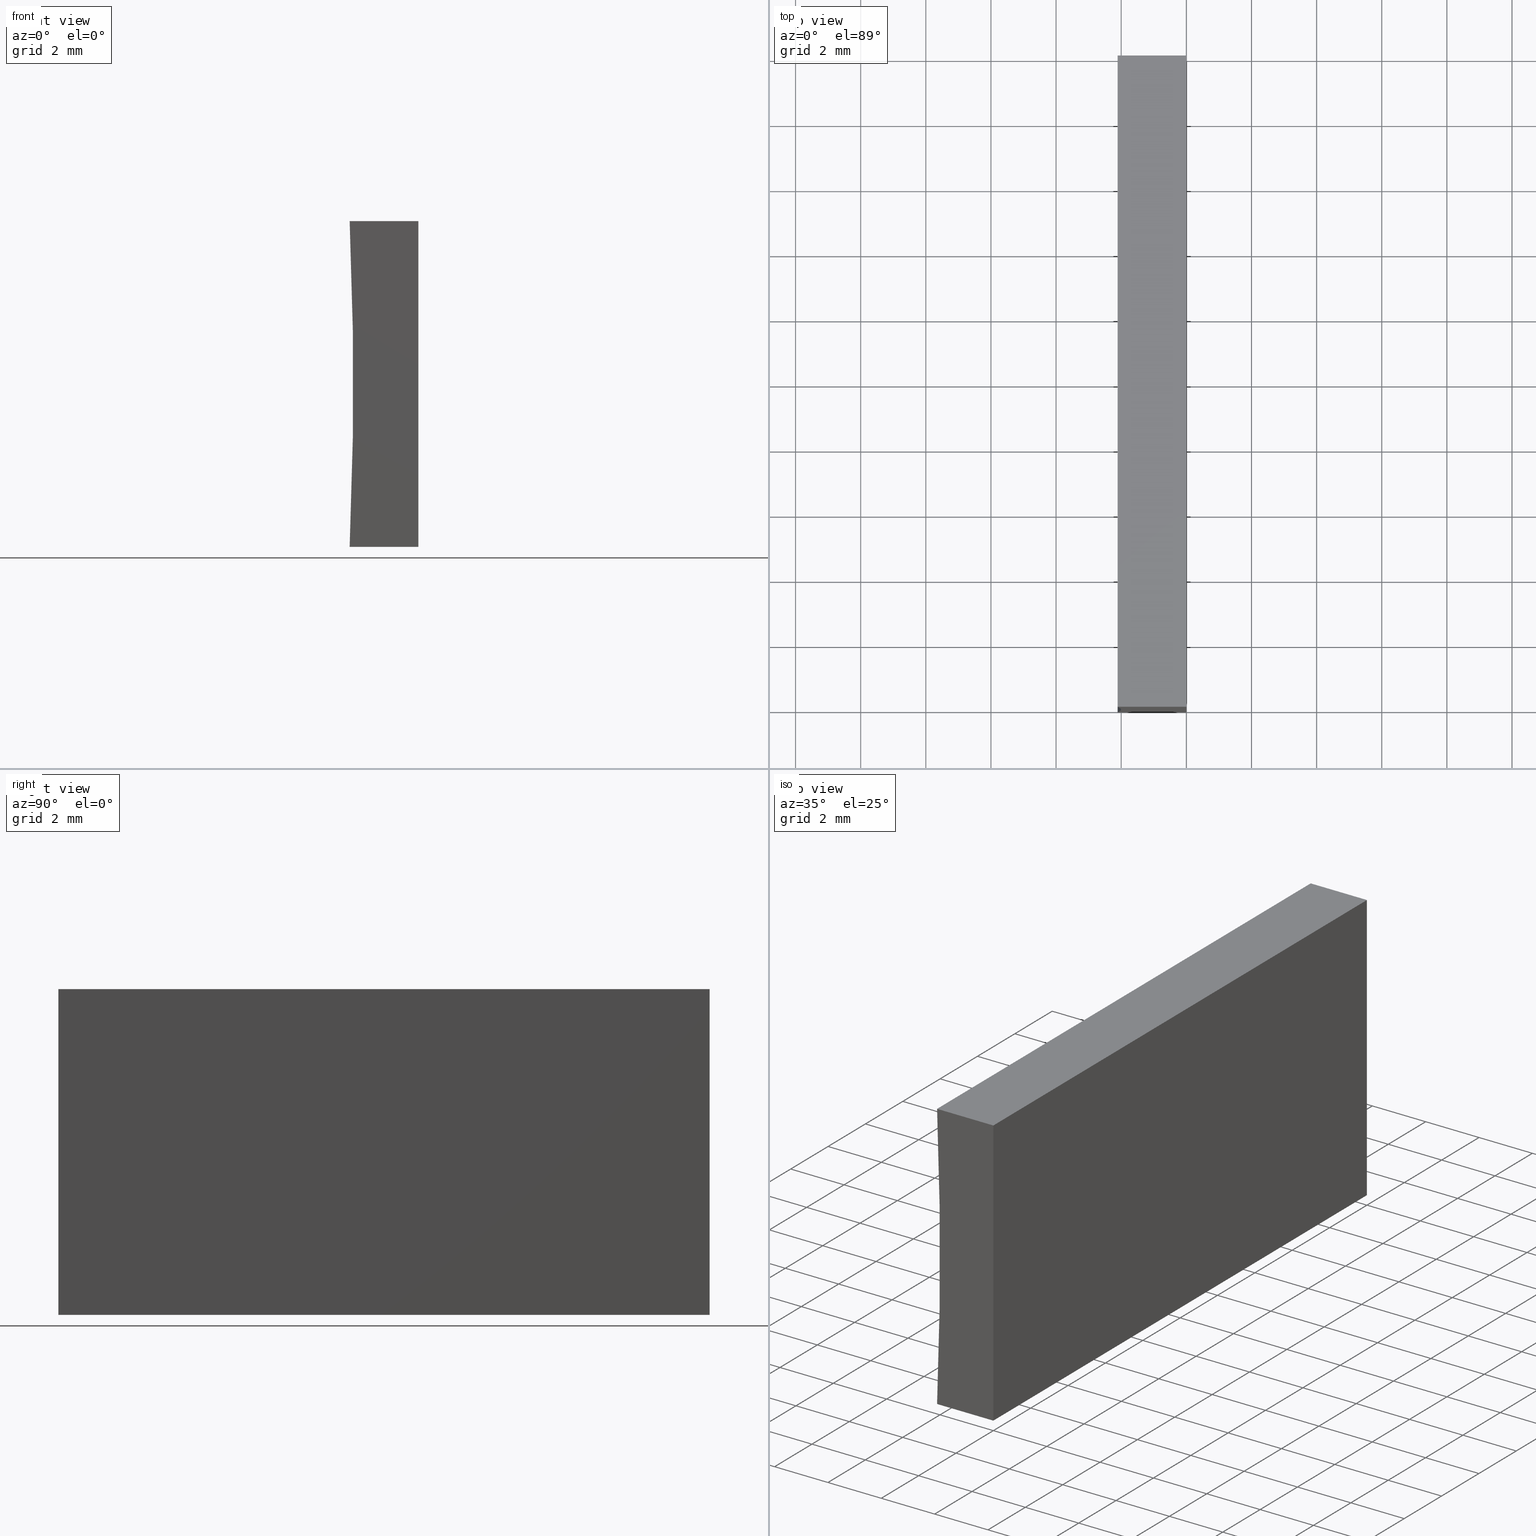
[diagram: canonical four-view strip — front | top / right | iso, engineering-drawing reading convention]
A machine part, canonical four-view strip (front | top / right | iso — engineering-drawing reading convention). The complete STEP part file that produces these views, byte-faithful:
ISO-10303-21;
HEADER;
FILE_DESCRIPTION (( 'STEP AP214' ),
    '1' );
FILE_NAME ('155484.STEP',
    '2019-07-04T01:57:53',
    ( 'user' ),
    ( '΢���й�' ),
    'SwSTEP 2.0',
    'SolidWorks 2016',
    '' );
FILE_SCHEMA (( 'AUTOMOTIVE_DESIGN' ));
ENDSEC;

DATA;
#1 = EDGE_CURVE ( 'NONE', #86, #123, #80, .T. ) ;
#2 = VECTOR ( 'NONE', #59, 1000.000000000000000 ) ;
#3 = VERTEX_POINT ( 'NONE', #82 ) ;
#4 = ORIENTED_EDGE ( 'NONE', *, *, #6, .T. ) ;
#5 = EDGE_LOOP ( 'NONE', ( #12, #155, #17, #183 ) ) ;
#6 = EDGE_CURVE ( 'NONE', #122, #187, #107, .T. ) ;
#7 = SURFACE_STYLE_USAGE ( .BOTH. , #29 ) ;
#8 = ADVANCED_FACE ( 'NONE', ( #153 ), #126, .F. ) ;
#9 = ORIENTED_EDGE ( 'NONE', *, *, #1, .T. ) ;
#10 = COLOUR_RGB ( '',1.000000000000000000, 1.000000000000000000, 1.000000000000000000 ) ;
#11 = DIRECTION ( 'NONE',  ( -0.0000000000000000000, -1.000000000000000000, -0.0000000000000000000 ) ) ;
#12 = ORIENTED_EDGE ( 'NONE', *, *, #33, .T. ) ;
#13 = VERTEX_POINT ( 'NONE', #160 ) ;
#14 = ORIENTED_EDGE ( 'NONE', *, *, #120, .F. ) ;
#15 = DIRECTION ( 'NONE',  ( -8.224915575553603800E-016, 0.0000000000000000000, -1.000000000000000000 ) ) ;
#16 = PRESENTATION_LAYER_ASSIGNMENT (  '', '', ( #141 ) ) ;
#17 = ORIENTED_EDGE ( 'NONE', *, *, #42, .F. ) ;
#18 = DIRECTION ( 'NONE',  ( -1.000000000000000000, 0.0000000000000000000, -8.224915575553600800E-016 ) ) ;
#19 = FACE_OUTER_BOUND ( 'NONE', #20, .T. ) ;
#20 = EDGE_LOOP ( 'NONE', ( #93, #119, #184, #201 ) ) ;
#21 = EDGE_CURVE ( 'NONE', #62, #86, #25, .T. ) ;
#22 = PRODUCT_DEFINITION ( 'δ֪', '', #85, #31 ) ;
#23 = SURFACE_STYLE_USAGE ( .BOTH. , #71 ) ;
#24 = CARTESIAN_POINT ( 'NONE',  ( -116.6200000000000000, 20.00000000000000000, 5.000000000000013300 ) ) ;
#25 = CIRCLE ( 'NONE', #137, 114.6200000000000000 ) ;
#26 = COLOUR_RGB ( '',1.000000000000000000, 1.000000000000000000, 1.000000000000000000 ) ;
#27 = VECTOR ( 'NONE', #190, 1000.000000000000000 ) ;
#28 = VECTOR ( 'NONE', #175, 1000.000000000000000 ) ;
#29 = SURFACE_SIDE_STYLE ('',( #146 ) ) ;
#30 = PLANE ( 'NONE',  #46 ) ;
#31 = PRODUCT_DEFINITION_CONTEXT ( 'detailed design', #195, 'design' ) ;
#32 = CARTESIAN_POINT ( 'NONE',  ( 0.0000000000000000000, 20.00000000000000000, 0.0000000000000000000 ) ) ;
#33 = EDGE_CURVE ( 'NONE', #3, #122, #136, .T. ) ;
#34 = CARTESIAN_POINT ( 'NONE',  ( -116.6200000000000000, 0.0000000000000000000, 5.000000000000013300 ) ) ;
#35 = CARTESIAN_POINT ( 'NONE',  ( 6.123233995736766300E-016, 20.00000000000000000, 10.00000000000000000 ) ) ;
#36 = FILL_AREA_STYLE_COLOUR ( '', #26 ) ;
#37 = DIRECTION ( 'NONE',  ( -1.000000000000000000, 0.0000000000000000000, 6.123233995736766000E-017 ) ) ;
#38 = CARTESIAN_POINT ( 'NONE',  ( 0.0000000000000000000, 0.0000000000000000000, 0.0000000000000000000 ) ) ;
#39 = FACE_OUTER_BOUND ( 'NONE', #182, .T. ) ;
#40 =( NAMED_UNIT ( * ) SI_UNIT ( $, .STERADIAN. ) SOLID_ANGLE_UNIT ( ) );
#41 = EDGE_CURVE ( 'NONE', #13, #3, #64, .T. ) ;
#42 = EDGE_CURVE ( 'NONE', #13, #142, #108, .T. ) ;
#43 =( NAMED_UNIT ( * ) PLANE_ANGLE_UNIT ( ) SI_UNIT ( $, .RADIAN. ) );
#44 = EDGE_CURVE ( 'NONE', #187, #123, #192, .T. ) ;
#45 = FACE_OUTER_BOUND ( 'NONE', #5, .T. ) ;
#46 = AXIS2_PLACEMENT_3D ( 'NONE', #150, #55, #169 ) ;
#47 = DIRECTION ( 'NONE',  ( 0.0000000000000000000, 0.0000000000000000000, 1.000000000000000000 ) ) ;
#48 = ORIENTED_EDGE ( 'NONE', *, *, #120, .T. ) ;
#49 = ORIENTED_EDGE ( 'NONE', *, *, #33, .F. ) ;
#50 = LINE ( 'NONE', #140, #188 ) ;
#51 = CARTESIAN_POINT ( 'NONE',  ( -2.109107941645996100, 20.00000000000000000, -1.387778780781445700E-014 ) ) ;
#52 = AXIS2_PLACEMENT_3D ( 'NONE', #180, #37, #101 ) ;
#53 = DIRECTION ( 'NONE',  ( -0.0000000000000000000, -1.000000000000000000, -0.0000000000000000000 ) ) ;
#54 = AXIS2_PLACEMENT_3D ( 'NONE', #94, #74, #79 ) ;
#55 = DIRECTION ( 'NONE',  ( 0.0000000000000000000, 1.000000000000000000, 0.0000000000000000000 ) ) ;
#56 =( GEOMETRIC_REPRESENTATION_CONTEXT ( 3 ) GLOBAL_UNCERTAINTY_ASSIGNED_CONTEXT ( ( #95 ) ) GLOBAL_UNIT_ASSIGNED_CONTEXT ( ( #87, #154, #40 ) ) REPRESENTATION_CONTEXT ( 'NONE', 'WORKASPACE' ) );
#57 = ORIENTED_EDGE ( 'NONE', *, *, #6, .F. ) ;
#58 = CYLINDRICAL_SURFACE ( 'NONE', #54, 114.6200000000000000 ) ;
#59 = DIRECTION ( 'NONE',  ( 1.000000000000000000, -0.0000000000000000000, -8.224915575553605800E-016 ) ) ;
#60 = CARTESIAN_POINT ( 'NONE',  ( -2.109107941646009900, 20.00000000000000000, 10.00000000000000200 ) ) ;
#61 = EDGE_CURVE ( 'NONE', #86, #13, #50, .T. ) ;
#62 = VERTEX_POINT ( 'NONE', #51 ) ;
#63 = CLOSED_SHELL ( 'NONE', ( #202, #76, #8, #157, #91, #138 ) ) ;
#64 = LINE ( 'NONE', #65, #151 ) ;
#65 = CARTESIAN_POINT ( 'NONE',  ( 6.123233995736766300E-016, 20.00000000000000000, 10.00000000000000000 ) ) ;
#66 = CARTESIAN_POINT ( 'NONE',  ( -116.6200000000000000, 20.00000000000000000, 5.000000000000013300 ) ) ;
#67 = VECTOR ( 'NONE', #18, 1000.000000000000000 ) ;
#68 = ORIENTED_EDGE ( 'NONE', *, *, #69, .T. ) ;
#69 = EDGE_CURVE ( 'NONE', #142, #122, #145, .T. ) ;
#70 = CARTESIAN_POINT ( 'NONE',  ( 0.0000000000000000000, 20.00000000000000000, 0.0000000000000000000 ) ) ;
#71 = SURFACE_SIDE_STYLE ('',( #179 ) ) ;
#72 = CARTESIAN_POINT ( 'NONE',  ( 0.0000000000000000000, 20.00000000000000000, 0.0000000000000000000 ) ) ;
#73 = MECHANICAL_DESIGN_GEOMETRIC_PRESENTATION_REPRESENTATION (  '', ( #141 ), #56 ) ;
#74 = DIRECTION ( 'NONE',  ( -0.0000000000000000000, -1.000000000000000000, -0.0000000000000000000 ) ) ;
#75 = ORIENTED_EDGE ( 'NONE', *, *, #42, .T. ) ;
#76 = ADVANCED_FACE ( 'NONE', ( #19 ), #58, .F. ) ;
#77 = SHAPE_DEFINITION_REPRESENTATION ( #121, #159 ) ;
#78 =( GEOMETRIC_REPRESENTATION_CONTEXT ( 3 ) GLOBAL_UNCERTAINTY_ASSIGNED_CONTEXT ( ( #131 ) ) GLOBAL_UNIT_ASSIGNED_CONTEXT ( ( #158, #43, #143 ) ) REPRESENTATION_CONTEXT ( 'NONE', 'WORKASPACE' ) );
#79 = DIRECTION ( 'NONE',  ( 0.0000000000000000000, 0.0000000000000000000, -1.000000000000000000 ) ) ;
#80 = LINE ( 'NONE', #125, #173 ) ;
#81 = LINE ( 'NONE', #70, #67 ) ;
#82 = CARTESIAN_POINT ( 'NONE',  ( 6.123233995736766300E-016, 0.0000000000000000000, 10.00000000000000000 ) ) ;
#83 = PLANE ( 'NONE',  #99 ) ;
#84 = APPLICATION_PROTOCOL_DEFINITION ( 'draft international standard', 'automotive_design', 1998, #195 ) ;
#85 = PRODUCT_DEFINITION_FORMATION_WITH_SPECIFIED_SOURCE ( '�κ�', '', #198, .NOT_KNOWN. ) ;
#86 = VERTEX_POINT ( 'NONE', #60 ) ;
#87 =( LENGTH_UNIT ( ) NAMED_UNIT ( * ) SI_UNIT ( .MILLI., .METRE. ) );
#88 = CARTESIAN_POINT ( 'NONE',  ( 0.0000000000000000000, 20.00000000000000000, 0.0000000000000000000 ) ) ;
#89 = MANIFOLD_SOLID_BREP ( '͹̨-����1', #63 ) ;
#90 = ORIENTED_EDGE ( 'NONE', *, *, #177, .F. ) ;
#91 = ADVANCED_FACE ( 'NONE', ( #139 ), #172, .T. ) ;
#92 = DIRECTION ( 'NONE',  ( 0.0000000000000000000, 0.0000000000000000000, 1.000000000000000000 ) ) ;
#93 = ORIENTED_EDGE ( 'NONE', *, *, #44, .T. ) ;
#94 = CARTESIAN_POINT ( 'NONE',  ( -116.6200000000000000, 20.00000000000000000, 5.000000000000013300 ) ) ;
#95 = UNCERTAINTY_MEASURE_WITH_UNIT (LENGTH_MEASURE( 1.000000000000000100E-005 ), #87, 'distance_accuracy_value', 'NONE');
#96 = ORIENTED_EDGE ( 'NONE', *, *, #61, .T. ) ;
#97 = LINE ( 'NONE', #171, #102 ) ;
#98 = MECHANICAL_DESIGN_GEOMETRIC_PRESENTATION_REPRESENTATION (  '', ( #193 ), #78 ) ;
#99 = AXIS2_PLACEMENT_3D ( 'NONE', #72, #133, #166 ) ;
#100 = CARTESIAN_POINT ( 'NONE',  ( -2.109107941645996100, 0.0000000000000000000, -1.387778780781445700E-014 ) ) ;
#101 = DIRECTION ( 'NONE',  ( 6.123233995736766000E-017, 0.0000000000000000000, 1.000000000000000000 ) ) ;
#102 = VECTOR ( 'NONE', #118, 1000.000000000000000 ) ;
#103 = ORIENTED_EDGE ( 'NONE', *, *, #44, .F. ) ;
#104 = ORIENTED_EDGE ( 'NONE', *, *, #41, .F. ) ;
#105 = CARTESIAN_POINT ( 'NONE',  ( -2.109107941646009900, 0.0000000000000000000, 10.00000000000000200 ) ) ;
#106 = DIRECTION ( 'NONE',  ( 0.0000000000000000000, 1.000000000000000000, 0.0000000000000000000 ) ) ;
#107 = LINE ( 'NONE', #194, #189 ) ;
#108 = LINE ( 'NONE', #109, #27 ) ;
#109 = CARTESIAN_POINT ( 'NONE',  ( 0.0000000000000000000, 20.00000000000000000, 0.0000000000000000000 ) ) ;
#110 = DIRECTION ( 'NONE',  ( 0.0000000000000000000, 0.0000000000000000000, 1.000000000000000000 ) ) ;
#111 = EDGE_CURVE ( 'NONE', #62, #187, #97, .T. ) ;
#112 = DIRECTION ( 'NONE',  ( -1.000000000000000000, 0.0000000000000000000, 8.224915575553603800E-016 ) ) ;
#113 = UNCERTAINTY_MEASURE_WITH_UNIT (LENGTH_MEASURE( 1.000000000000000100E-005 ), #147, 'distance_accuracy_value', 'NONE');
#114 = FILL_AREA_STYLE ('',( #132 ) ) ;
#115 = ORIENTED_EDGE ( 'NONE', *, *, #111, .F. ) ;
#116 = AXIS2_PLACEMENT_3D ( 'NONE', #35, #15, #112 ) ;
#117 = PLANE ( 'NONE',  #52 ) ;
#118 = DIRECTION ( 'NONE',  ( -0.0000000000000000000, -1.000000000000000000, -0.0000000000000000000 ) ) ;
#119 = ORIENTED_EDGE ( 'NONE', *, *, #1, .F. ) ;
#120 = EDGE_CURVE ( 'NONE', #123, #3, #144, .T. ) ;
#121 = PRODUCT_DEFINITION_SHAPE ( 'NONE', 'NONE',  #22 ) ;
#122 = VERTEX_POINT ( 'NONE', #38 ) ;
#123 = VERTEX_POINT ( 'NONE', #105 ) ;
#124 = DIRECTION ( 'NONE',  ( -0.0000000000000000000, -1.000000000000000000, -0.0000000000000000000 ) ) ;
#125 = CARTESIAN_POINT ( 'NONE',  ( -2.109107941646009900, 20.00000000000000000, 10.00000000000000200 ) ) ;
#126 = PLANE ( 'NONE',  #116 ) ;
#127 = VECTOR ( 'NONE', #200, 1000.000000000000000 ) ;
#128 =( NAMED_UNIT ( * ) SI_UNIT ( $, .STERADIAN. ) SOLID_ANGLE_UNIT ( ) );
#129 = AXIS2_PLACEMENT_3D ( 'NONE', #34, #11, #110 ) ;
#130 = FILL_AREA_STYLE ('',( #36 ) ) ;
#131 = UNCERTAINTY_MEASURE_WITH_UNIT (LENGTH_MEASURE( 1.000000000000000100E-005 ), #158, 'distance_accuracy_value', 'NONE');
#132 = FILL_AREA_STYLE_COLOUR ( '', #10 ) ;
#133 = DIRECTION ( 'NONE',  ( -8.224915575553600800E-016, 0.0000000000000000000, 1.000000000000000000 ) ) ;
#134 = EDGE_LOOP ( 'NONE', ( #197, #178, #96, #75 ) ) ;
#135 = PRESENTATION_STYLE_ASSIGNMENT (( #23 ) ) ;
#136 = LINE ( 'NONE', #176, #28 ) ;
#137 = AXIS2_PLACEMENT_3D ( 'NONE', #66, #161, #47 ) ;
#138 = ADVANCED_FACE ( 'NONE', ( #39 ), #30, .F. ) ;
#139 = FACE_OUTER_BOUND ( 'NONE', #134, .T. ) ;
#140 = CARTESIAN_POINT ( 'NONE',  ( 6.123233995736766300E-016, 20.00000000000000000, 10.00000000000000000 ) ) ;
#141 = STYLED_ITEM ( 'NONE', ( #135 ), #89 ) ;
#142 = VERTEX_POINT ( 'NONE', #88 ) ;
#143 =( NAMED_UNIT ( * ) SI_UNIT ( $, .STERADIAN. ) SOLID_ANGLE_UNIT ( ) );
#144 = LINE ( 'NONE', #186, #2 ) ;
#145 = LINE ( 'NONE', #32, #127 ) ;
#146 = SURFACE_STYLE_FILL_AREA ( #130 ) ;
#147 =( LENGTH_UNIT ( ) NAMED_UNIT ( * ) SI_UNIT ( .MILLI., .METRE. ) );
#148 = PRODUCT_CONTEXT ( 'NONE', #149, 'mechanical' ) ;
#149 = APPLICATION_CONTEXT ( 'automotive_design' ) ;
#150 = CARTESIAN_POINT ( 'NONE',  ( -116.6200000000000000, 0.0000000000000000000, 5.000000000000013300 ) ) ;
#151 = VECTOR ( 'NONE', #124, 1000.000000000000000 ) ;
#152 = ORIENTED_EDGE ( 'NONE', *, *, #61, .F. ) ;
#153 = FACE_OUTER_BOUND ( 'NONE', #167, .T. ) ;
#154 =( NAMED_UNIT ( * ) PLANE_ANGLE_UNIT ( ) SI_UNIT ( $, .RADIAN. ) );
#155 = ORIENTED_EDGE ( 'NONE', *, *, #69, .F. ) ;
#156 = AXIS2_PLACEMENT_3D ( 'NONE', #170, #92, #162 ) ;
#157 = ADVANCED_FACE ( 'NONE', ( #45 ), #117, .F. ) ;
#158 =( LENGTH_UNIT ( ) NAMED_UNIT ( * ) SI_UNIT ( .MILLI., .METRE. ) );
#159 = ADVANCED_BREP_SHAPE_REPRESENTATION ( '155484', ( #89, #156 ), #203 ) ;
#160 = CARTESIAN_POINT ( 'NONE',  ( 6.123233995736766300E-016, 20.00000000000000000, 10.00000000000000000 ) ) ;
#161 = DIRECTION ( 'NONE',  ( -0.0000000000000000000, -1.000000000000000000, -0.0000000000000000000 ) ) ;
#162 = DIRECTION ( 'NONE',  ( 1.000000000000000000, 0.0000000000000000000, 0.0000000000000000000 ) ) ;
#163 = EDGE_LOOP ( 'NONE', ( #4, #115, #90, #68 ) ) ;
#164 = PRODUCT_RELATED_PRODUCT_CATEGORY ( 'part', '', ( #198 ) ) ;
#165 = DIRECTION ( 'NONE',  ( 1.000000000000000000, -0.0000000000000000000, -8.224915575553605800E-016 ) ) ;
#166 = DIRECTION ( 'NONE',  ( 1.000000000000000000, 0.0000000000000000000, 8.224915575553600800E-016 ) ) ;
#167 = EDGE_LOOP ( 'NONE', ( #48, #104, #152, #9 ) ) ;
#168 = APPLICATION_PROTOCOL_DEFINITION ( 'draft international standard', 'automotive_design', 1998, #149 ) ;
#169 = DIRECTION ( 'NONE',  ( 0.0000000000000000000, -0.0000000000000000000, 1.000000000000000000 ) ) ;
#170 = CARTESIAN_POINT ( 'NONE',  ( 0.0000000000000000000, 0.0000000000000000000, 0.0000000000000000000 ) ) ;
#171 = CARTESIAN_POINT ( 'NONE',  ( -2.109107941645996100, 20.00000000000000000, -1.387778780781445700E-014 ) ) ;
#172 = PLANE ( 'NONE',  #185 ) ;
#173 = VECTOR ( 'NONE', #53, 1000.000000000000000 ) ;
#174 = PRESENTATION_LAYER_ASSIGNMENT (  '', '', ( #193 ) ) ;
#175 = DIRECTION ( 'NONE',  ( -6.123233995736766000E-017, -0.0000000000000000000, -1.000000000000000000 ) ) ;
#176 = CARTESIAN_POINT ( 'NONE',  ( 0.0000000000000000000, 0.0000000000000000000, 0.0000000000000000000 ) ) ;
#177 = EDGE_CURVE ( 'NONE', #142, #62, #81, .T. ) ;
#178 = ORIENTED_EDGE ( 'NONE', *, *, #21, .T. ) ;
#179 = SURFACE_STYLE_FILL_AREA ( #114 ) ;
#180 = CARTESIAN_POINT ( 'NONE',  ( 0.0000000000000000000, 20.00000000000000000, 0.0000000000000000000 ) ) ;
#181 = DIRECTION ( 'NONE',  ( -1.000000000000000000, 0.0000000000000000000, -8.224915575553600800E-016 ) ) ;
#182 = EDGE_LOOP ( 'NONE', ( #57, #49, #14, #103 ) ) ;
#183 = ORIENTED_EDGE ( 'NONE', *, *, #41, .T. ) ;
#184 = ORIENTED_EDGE ( 'NONE', *, *, #21, .F. ) ;
#185 = AXIS2_PLACEMENT_3D ( 'NONE', #24, #106, #199 ) ;
#186 = CARTESIAN_POINT ( 'NONE',  ( 6.123233995736766300E-016, 0.0000000000000000000, 10.00000000000000000 ) ) ;
#187 = VERTEX_POINT ( 'NONE', #100 ) ;
#188 = VECTOR ( 'NONE', #165, 1000.000000000000000 ) ;
#189 = VECTOR ( 'NONE', #181, 1000.000000000000000 ) ;
#190 = DIRECTION ( 'NONE',  ( -6.123233995736766000E-017, -0.0000000000000000000, -1.000000000000000000 ) ) ;
#191 = PRESENTATION_STYLE_ASSIGNMENT (( #7 ) ) ;
#192 = CIRCLE ( 'NONE', #129, 114.6200000000000000 ) ;
#193 = STYLED_ITEM ( 'NONE', ( #191 ), #159 ) ;
#194 = CARTESIAN_POINT ( 'NONE',  ( 0.0000000000000000000, 0.0000000000000000000, 0.0000000000000000000 ) ) ;
#195 = APPLICATION_CONTEXT ( 'automotive_design' ) ;
#196 =( NAMED_UNIT ( * ) PLANE_ANGLE_UNIT ( ) SI_UNIT ( $, .RADIAN. ) );
#197 = ORIENTED_EDGE ( 'NONE', *, *, #177, .T. ) ;
#198 = PRODUCT ( '155484', '155484', '', ( #148 ) ) ;
#199 = DIRECTION ( 'NONE',  ( 0.0000000000000000000, -0.0000000000000000000, 1.000000000000000000 ) ) ;
#200 = DIRECTION ( 'NONE',  ( -0.0000000000000000000, -1.000000000000000000, -0.0000000000000000000 ) ) ;
#201 = ORIENTED_EDGE ( 'NONE', *, *, #111, .T. ) ;
#202 = ADVANCED_FACE ( 'NONE', ( #204 ), #83, .F. ) ;
#203 =( GEOMETRIC_REPRESENTATION_CONTEXT ( 3 ) GLOBAL_UNCERTAINTY_ASSIGNED_CONTEXT ( ( #113 ) ) GLOBAL_UNIT_ASSIGNED_CONTEXT ( ( #147, #196, #128 ) ) REPRESENTATION_CONTEXT ( 'NONE', 'WORKASPACE' ) );
#204 = FACE_OUTER_BOUND ( 'NONE', #163, .T. ) ;
ENDSEC;
END-ISO-10303-21;
